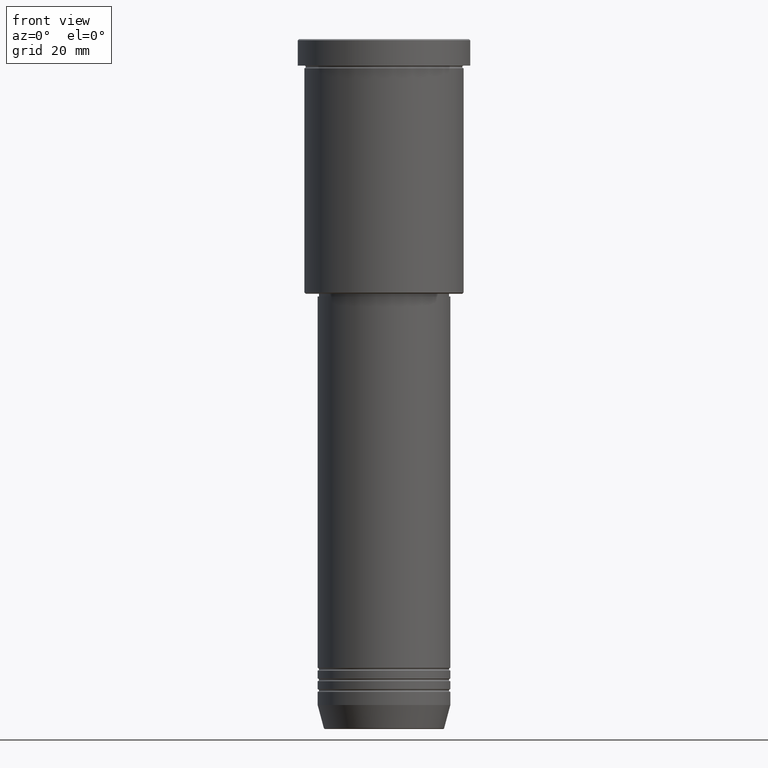
[diagram: clean part render]
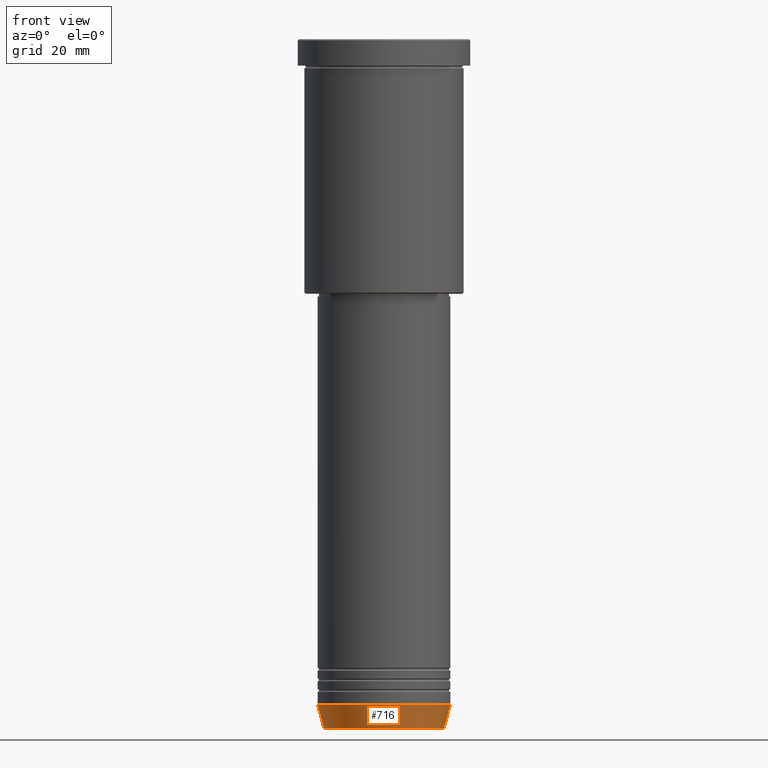
[diagram: same view with one face highlighted and labeled with its STEP entity id]
A machine part, front view. The second image highlights one B-rep face of the part: STEP entity #716.
In plain terms, the highlighted conical surface has half-angle 15 deg.
Its self-contained STEP definition (entity closure, byte-faithful):
#3 = VERTEX_POINT ( 'NONE', #913 ) ;
#24 = DIRECTION ( 'NONE',  ( -0.2588190451025215166, 3.169619151431774802E-17, 0.9659258262890679791 ) ) ;
#31 = VECTOR ( 'NONE', #24, 1000.000000000000114 ) ;
#101 = VERTEX_POINT ( 'NONE', #869 ) ;
#140 = CARTESIAN_POINT ( 'NONE',  ( 25.00000000000000000, 0.000000000000000000, -251.0000000000000000 ) ) ;
#152 = FACE_OUTER_BOUND ( 'NONE', #436, .T. ) ;
#184 = CIRCLE ( 'NONE', #1146, 22.68775668727494477 ) ;
#219 = AXIS2_PLACEMENT_3D ( 'NONE', #527, #894, #312 ) ;
#229 = CARTESIAN_POINT ( 'NONE',  ( 25.00000000000000000, 0.000000000000000000, -251.0000000000000000 ) ) ;
#253 = EDGE_CURVE ( 'NONE', #700, #389, #1167, .T. ) ;
#276 = DIRECTION ( 'NONE',  ( -0.000000000000000000, -0.000000000000000000, 1.000000000000000000 ) ) ;
#312 = DIRECTION ( 'NONE',  ( 1.000000000000000000, 0.000000000000000000, 0.000000000000000000 ) ) ;
#336 = ORIENTED_EDGE ( 'NONE', *, *, #253, .T. ) ;
#358 = DIRECTION ( 'NONE',  ( 0.2588190451025215166, 0.000000000000000000, 0.9659258262890679791 ) ) ;
#389 = VERTEX_POINT ( 'NONE', #140 ) ;
#431 = CARTESIAN_POINT ( 'NONE',  ( 22.68775668727494477, 0.000000000000000000, -259.6294095225512706 ) ) ;
#436 = EDGE_LOOP ( 'NONE', ( #982, #643, #336, #475 ) ) ;
#475 = ORIENTED_EDGE ( 'NONE', *, *, #904, .F. ) ;
#513 = EDGE_CURVE ( 'NONE', #101, #3, #1104, .T. ) ;
#527 = CARTESIAN_POINT ( 'NONE',  ( 0.000000000000000000, 0.000000000000000000, -251.0000000000000000 ) ) ;
#578 = CARTESIAN_POINT ( 'NONE',  ( -25.00000000000000000, 3.061616997868383043E-15, -251.0000000000000000 ) ) ;
#581 = DIRECTION ( 'NONE',  ( 1.000000000000000000, 0.000000000000000000, 0.000000000000000000 ) ) ;
#598 = CONICAL_SURFACE ( 'NONE', #219, 25.00000000000000000, 0.2617993877991502960 ) ;
#616 = VECTOR ( 'NONE', #358, 1000.000000000000114 ) ;
#643 = ORIENTED_EDGE ( 'NONE', *, *, #972, .T. ) ;
#700 = VERTEX_POINT ( 'NONE', #431 ) ;
#716 = ADVANCED_FACE ( 'NONE', ( #152 ), #598, .T. ) ;
#843 = CARTESIAN_POINT ( 'NONE',  ( 0.000000000000000000, 0.000000000000000000, -259.6294095225512706 ) ) ;
#869 = CARTESIAN_POINT ( 'NONE',  ( -22.68775668727494477, 2.920032929279452581E-15, -259.6294095225512706 ) ) ;
#894 = DIRECTION ( 'NONE',  ( -0.000000000000000000, -0.000000000000000000, 1.000000000000000000 ) ) ;
#904 = EDGE_CURVE ( 'NONE', #3, #389, #1073, .T. ) ;
#913 = CARTESIAN_POINT ( 'NONE',  ( -25.00000000000000000, 3.061616997868383043E-15, -251.0000000000000000 ) ) ;
#921 = DIRECTION ( 'NONE',  ( -0.000000000000000000, -0.000000000000000000, 1.000000000000000000 ) ) ;
#941 = AXIS2_PLACEMENT_3D ( 'NONE', #1105, #921, #1116 ) ;
#972 = EDGE_CURVE ( 'NONE', #101, #700, #184, .T. ) ;
#982 = ORIENTED_EDGE ( 'NONE', *, *, #513, .F. ) ;
#1073 = CIRCLE ( 'NONE', #941, 25.00000000000000000 ) ;
#1104 = LINE ( 'NONE', #578, #31 ) ;
#1105 = CARTESIAN_POINT ( 'NONE',  ( 0.000000000000000000, 0.000000000000000000, -251.0000000000000000 ) ) ;
#1116 = DIRECTION ( 'NONE',  ( 1.000000000000000000, 0.000000000000000000, 0.000000000000000000 ) ) ;
#1146 = AXIS2_PLACEMENT_3D ( 'NONE', #843, #276, #581 ) ;
#1167 = LINE ( 'NONE', #229, #616 ) ;